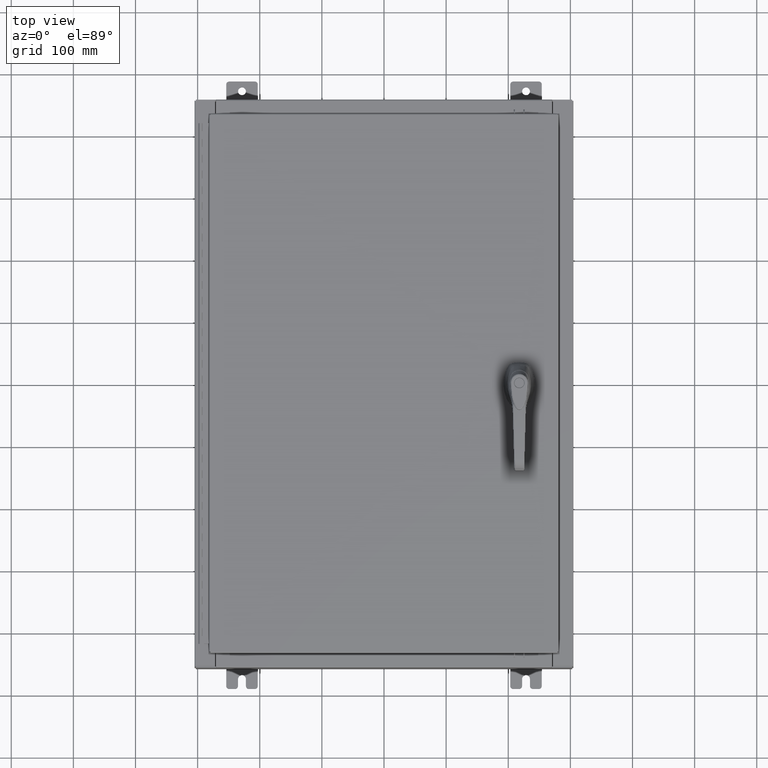
[diagram: clean part render]
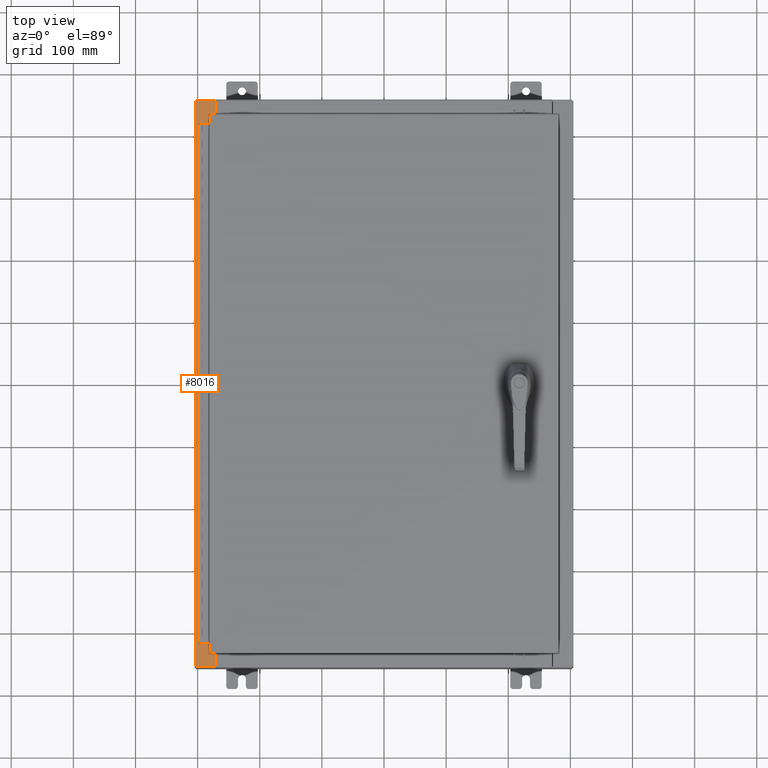
[diagram: same view with one face highlighted and labeled with its STEP entity id]
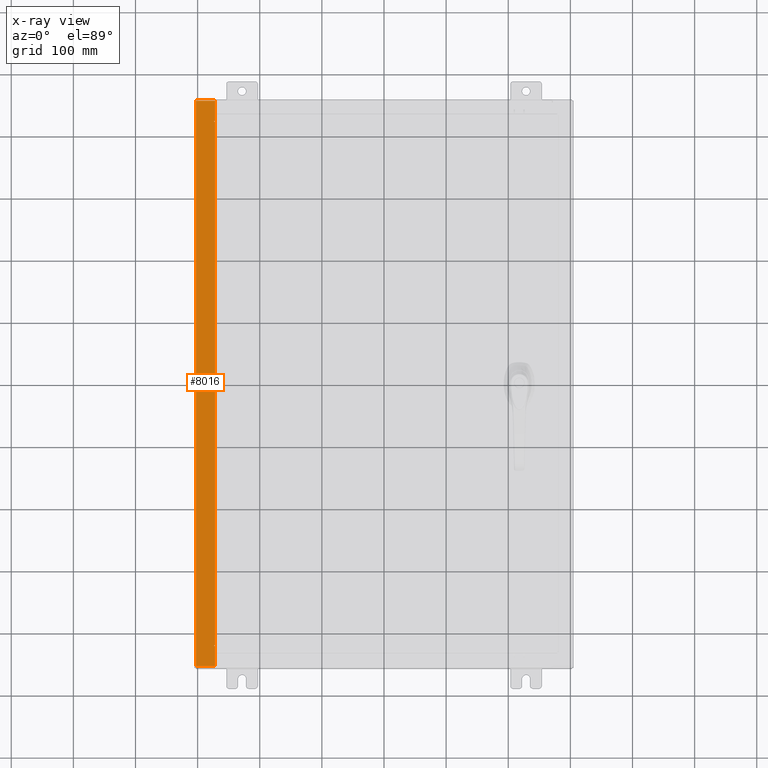
[diagram: x-ray of the same camera — body ghosted, the highlighted face saturated]
A machine part, top view. The second image highlights one B-rep face of the part: STEP entity #8016.
The next image is the same camera in x-ray: the body ghosted, the highlighted face saturated — about 0% of this face is hidden behind the body in this view.
In plain terms, the highlighted planar face has unit normal (0, 0, -1).
Its self-contained STEP definition (entity closure, byte-faithful):
#184 = LINE ( 'NONE', #106270, #120749 ) ;
#1529 = CARTESIAN_POINT ( 'NONE',  ( -10.75005000000002100, 16.59375000000000000, 5.925300000000009800 ) ) ;
#1936 = DIRECTION ( 'NONE',  ( 1.000000000000000000, -4.340572780400098900E-014, -2.170286390200049500E-014 ) ) ;
#2506 = DIRECTION ( 'NONE',  ( 1.000000000000000000, 0.0000000000000000000, 0.0000000000000000000 ) ) ;
#3766 = AXIS2_PLACEMENT_3D ( 'NONE', #116487, #59423, #2506 ) ;
#3899 = EDGE_CURVE ( 'NONE', #37490, #40382, #56164, .T. ) ;
#6501 = CARTESIAN_POINT ( 'NONE',  ( -10.71270000000002100, 16.59375000000000000, 5.925300000000009800 ) ) ;
#7336 = CARTESIAN_POINT ( 'NONE',  ( -11.91230000000002000, 17.92529999999999600, 5.925299999999999100 ) ) ;
#8016 = ADVANCED_FACE ( 'NONE', ( #84587 ), #31681, .F. ) ;
#9544 = CARTESIAN_POINT ( 'NONE',  ( -10.71270000000002100, -16.59375000000000400, 5.925300000000009800 ) ) ;
#11436 = DIRECTION ( 'NONE',  ( 1.000000000000000000, -4.379057701015054300E-047, 7.132762385546384700E-015 ) ) ;
#11858 = EDGE_CURVE ( 'NONE', #74982, #37265, #30750, .T. ) ;
#12113 = LINE ( 'NONE', #82448, #34438 ) ;
#12772 = ORIENTED_EDGE ( 'NONE', *, *, #3899, .T. ) ;
#13371 = VERTEX_POINT ( 'NONE', #120814 ) ;
#13892 = CARTESIAN_POINT ( 'NONE',  ( -11.91230000000002000, -17.92530000000000400, 5.925299999999999100 ) ) ;
#14865 = CARTESIAN_POINT ( 'NONE',  ( -10.75005000000002100, 16.63110000000000000, 5.925300000000008000 ) ) ;
#15048 = CARTESIAN_POINT ( 'NONE',  ( -10.69970000000002100, -16.63110000000000700, 5.925300000000008000 ) ) ;
#15441 = VERTEX_POINT ( 'NONE', #34990 ) ;
#16120 = LINE ( 'NONE', #54789, #88968 ) ;
#18868 = ORIENTED_EDGE ( 'NONE', *, *, #75366, .F. ) ;
#19961 = DIRECTION ( 'NONE',  ( 7.132762385546384700E-015, 0.0000000000000000000, -1.000000000000000000 ) ) ;
#20735 = DIRECTION ( 'NONE',  ( -2.076025640262915200E-031, 1.000000000000000000, -1.480779759829717100E-045 ) ) ;
#21187 = AXIS2_PLACEMENT_3D ( 'NONE', #112731, #55682, #122251 ) ;
#22063 = EDGE_CURVE ( 'NONE', #86636, #37265, #96597, .T. ) ;
#25243 = CARTESIAN_POINT ( 'NONE',  ( -10.71270000000002100, 16.59375000000000000, 5.925300000000009800 ) ) ;
#25596 = VERTEX_POINT ( 'NONE', #66011 ) ;
#26642 = VECTOR ( 'NONE', #49775, 39.37007874015748100 ) ;
#28503 = CARTESIAN_POINT ( 'NONE',  ( -10.69970000000002100, -17.92530000000000400, 5.925300000000008000 ) ) ;
#30750 = LINE ( 'NONE', #36714, #33722 ) ;
#31681 = PLANE ( 'NONE',  #72393 ) ;
#32107 = DIRECTION ( 'NONE',  ( -0.0000000000000000000, 1.000000000000000000, -0.0000000000000000000 ) ) ;
#33722 = VECTOR ( 'NONE', #32107, 39.37007874015748100 ) ;
#34438 = VECTOR ( 'NONE', #63684, 39.37007874015748100 ) ;
#34523 = LINE ( 'NONE', #115913, #98543 ) ;
#34990 = CARTESIAN_POINT ( 'NONE',  ( -10.75005000000002100, 16.59375000000000000, 5.925300000000008000 ) ) ;
#35105 = ORIENTED_EDGE ( 'NONE', *, *, #80911, .T. ) ;
#35671 = CARTESIAN_POINT ( 'NONE',  ( -10.71270000000002100, -16.59375000000000400, 5.925300000000009800 ) ) ;
#36714 = CARTESIAN_POINT ( 'NONE',  ( -11.91230000000002000, 17.92529999999999600, 5.925299999999999100 ) ) ;
#37265 = VERTEX_POINT ( 'NONE', #7336 ) ;
#37490 = VERTEX_POINT ( 'NONE', #28503 ) ;
#38350 = LINE ( 'NONE', #35671, #85914 ) ;
#40382 = VERTEX_POINT ( 'NONE', #15048 ) ;
#41406 = CARTESIAN_POINT ( 'NONE',  ( -10.69970000000002100, 17.92529999999999600, 5.925300000000008000 ) ) ;
#43900 = ORIENTED_EDGE ( 'NONE', *, *, #60566, .T. ) ;
#44027 = EDGE_CURVE ( 'NONE', #87520, #48052, #38350, .T. ) ;
#45223 = DIRECTION ( 'NONE',  ( -1.000000000000000000, -4.340572780400098900E-014, 2.170286390200049500E-014 ) ) ;
#48052 = VERTEX_POINT ( 'NONE', #113976 ) ;
#49775 = DIRECTION ( 'NONE',  ( -1.000000000000000000, -2.717614574405841100E-032, -7.132762385546384700E-015 ) ) ;
#54789 = CARTESIAN_POINT ( 'NONE',  ( -10.69970000000002100, 16.63110000000000000, 5.925300000000008900 ) ) ;
#55603 = CIRCLE ( 'NONE', #21187, 0.01867499999999949400 ) ;
#55682 = DIRECTION ( 'NONE',  ( -7.132762385546384700E-015, -0.0000000000000000000, 1.000000000000000000 ) ) ;
#56164 = LINE ( 'NONE', #65467, #106815 ) ;
#59423 = DIRECTION ( 'NONE',  ( -7.132762385546384700E-015, -0.0000000000000000000, 1.000000000000000000 ) ) ;
#60035 = VECTOR ( 'NONE', #63414, 39.37007874015748100 ) ;
#60566 = EDGE_CURVE ( 'NONE', #74982, #37490, #184, .T. ) ;
#62583 = EDGE_CURVE ( 'NONE', #79369, #15441, #105748, .T. ) ;
#63414 = DIRECTION ( 'NONE',  ( -0.0000000000000000000, -1.000000000000000000, -0.0000000000000000000 ) ) ;
#63684 = DIRECTION ( 'NONE',  ( -2.076025640262915200E-031, 1.000000000000000000, -1.480779759829717100E-045 ) ) ;
#65251 = ORIENTED_EDGE ( 'NONE', *, *, #22063, .T. ) ;
#65467 = CARTESIAN_POINT ( 'NONE',  ( -10.69970000000002100, -2.221285154312107200E-030, 5.925300000000008000 ) ) ;
#66011 = CARTESIAN_POINT ( 'NONE',  ( -10.75005000000002100, -16.63110000000000400, 5.925300000000008000 ) ) ;
#72393 = AXIS2_PLACEMENT_3D ( 'NONE', #101003, #19961, #95666 ) ;
#74982 = VERTEX_POINT ( 'NONE', #13892 ) ;
#75366 = EDGE_CURVE ( 'NONE', #13371, #79369, #16120, .T. ) ;
#79369 = VERTEX_POINT ( 'NONE', #14865 ) ;
#80911 = EDGE_CURVE ( 'NONE', #13371, #86636, #12113, .T. ) ;
#82039 = EDGE_CURVE ( 'NONE', #15441, #84248, #117617, .T. ) ;
#82448 = CARTESIAN_POINT ( 'NONE',  ( -10.69970000000002100, -2.221285154312107200E-030, 5.925300000000008000 ) ) ;
#83073 = DIRECTION ( 'NONE',  ( -1.000000000000000000, 0.0000000000000000000, 0.0000000000000000000 ) ) ;
#84248 = VERTEX_POINT ( 'NONE', #25243 ) ;
#84587 = FACE_OUTER_BOUND ( 'NONE', #99218, .T. ) ;
#85914 = VECTOR ( 'NONE', #83073, 39.37007874015748100 ) ;
#86636 = VERTEX_POINT ( 'NONE', #41406 ) ;
#87520 = VERTEX_POINT ( 'NONE', #9544 ) ;
#88968 = VECTOR ( 'NONE', #45223, 39.37007874015748100 ) ;
#91797 = ORIENTED_EDGE ( 'NONE', *, *, #82039, .F. ) ;
#93856 = EDGE_CURVE ( 'NONE', #84248, #87520, #104702, .T. ) ;
#95312 = VECTOR ( 'NONE', #96360, 39.37007874015748100 ) ;
#95666 = DIRECTION ( 'NONE',  ( -1.000000000000000000, 0.0000000000000000000, -7.132762385546384700E-015 ) ) ;
#96360 = DIRECTION ( 'NONE',  ( 1.000000000000000000, 0.0000000000000000000, 0.0000000000000000000 ) ) ;
#96597 = LINE ( 'NONE', #106779, #26642 ) ;
#98543 = VECTOR ( 'NONE', #1936, 39.37007874015748100 ) ;
#99218 = EDGE_LOOP ( 'NONE', ( #18868, #35105, #65251, #100375, #43900, #12772, #123420, #114967, #105155, #106002, #91797, #103975 ) ) ;
#100375 = ORIENTED_EDGE ( 'NONE', *, *, #11858, .F. ) ;
#101003 = CARTESIAN_POINT ( 'NONE',  ( -4.252457061909017700E-014, 0.0000000000000000000, 5.925300000000084400 ) ) ;
#103975 = ORIENTED_EDGE ( 'NONE', *, *, #62583, .F. ) ;
#104702 = LINE ( 'NONE', #6501, #60035 ) ;
#105155 = ORIENTED_EDGE ( 'NONE', *, *, #44027, .F. ) ;
#105748 = CIRCLE ( 'NONE', #3766, 0.01867499999999949400 ) ;
#106002 = ORIENTED_EDGE ( 'NONE', *, *, #93856, .F. ) ;
#106270 = CARTESIAN_POINT ( 'NONE',  ( -4.252457061909017700E-014, -17.92530000000000400, 5.925300000000084400 ) ) ;
#106779 = CARTESIAN_POINT ( 'NONE',  ( -4.252457061909017700E-014, 17.92529999999999600, 5.925300000000084400 ) ) ;
#106815 = VECTOR ( 'NONE', #20735, 39.37007874015748100 ) ;
#108576 = EDGE_CURVE ( 'NONE', #25596, #40382, #34523, .T. ) ;
#112731 = CARTESIAN_POINT ( 'NONE',  ( -10.75005000000002100, -16.61242500000000200, 5.925300000000009800 ) ) ;
#113976 = CARTESIAN_POINT ( 'NONE',  ( -10.75005000000002100, -16.59375000000000400, 5.925300000000008000 ) ) ;
#114967 = ORIENTED_EDGE ( 'NONE', *, *, #119319, .F. ) ;
#115913 = CARTESIAN_POINT ( 'NONE',  ( -10.75005000000002100, -16.63110000000000400, 5.925300000000009800 ) ) ;
#116487 = CARTESIAN_POINT ( 'NONE',  ( -10.75005000000002100, 16.61242499999999800, 5.925300000000009800 ) ) ;
#117617 = LINE ( 'NONE', #1529, #95312 ) ;
#119319 = EDGE_CURVE ( 'NONE', #48052, #25596, #55603, .T. ) ;
#120749 = VECTOR ( 'NONE', #11436, 39.37007874015748100 ) ;
#120814 = CARTESIAN_POINT ( 'NONE',  ( -10.69970000000002100, 16.63110000000000000, 5.925300000000008000 ) ) ;
#122251 = DIRECTION ( 'NONE',  ( 1.000000000000000000, 0.0000000000000000000, 0.0000000000000000000 ) ) ;
#123420 = ORIENTED_EDGE ( 'NONE', *, *, #108576, .F. ) ;